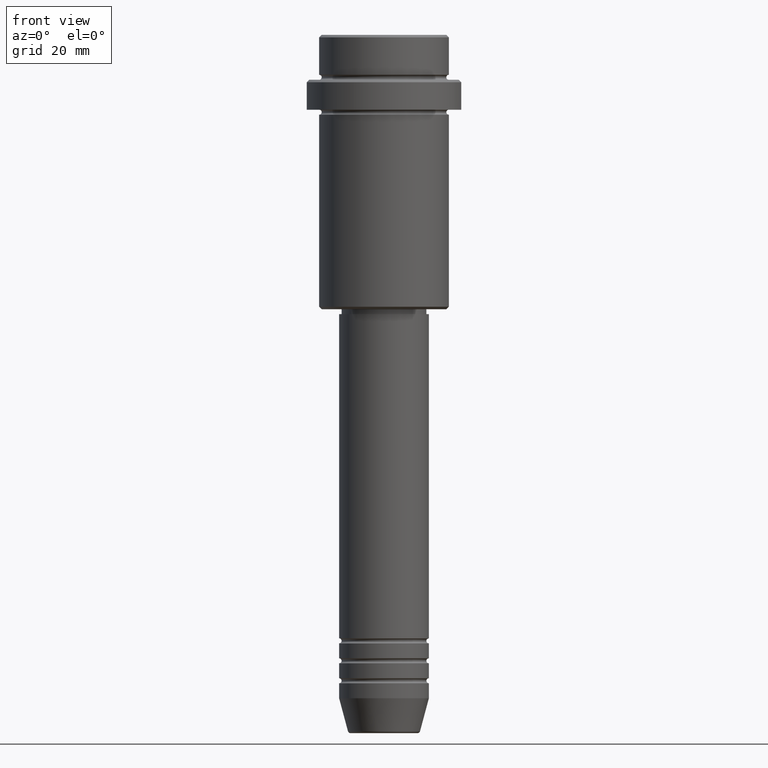
[diagram: clean part render]
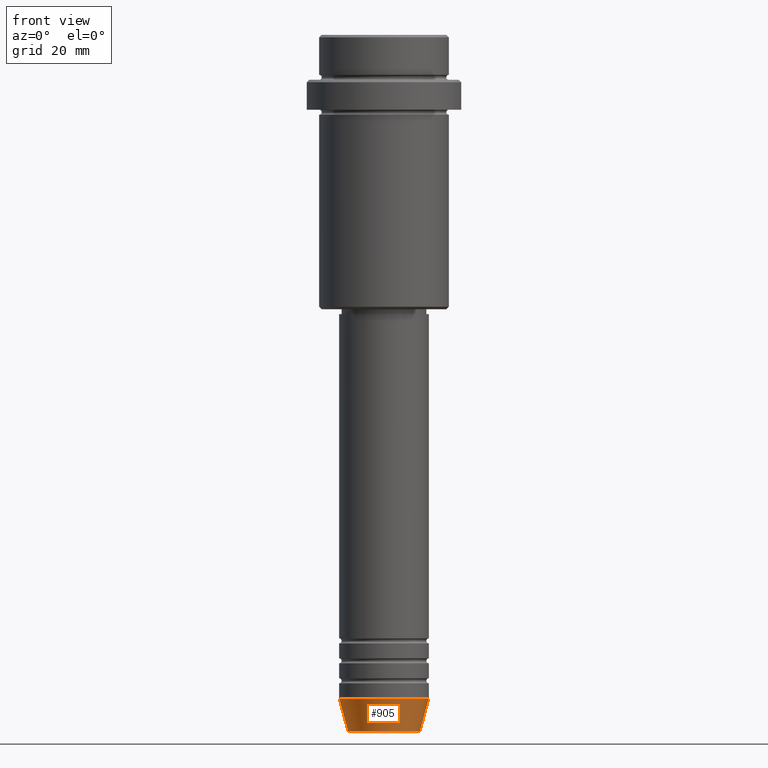
[diagram: same view with one face highlighted and labeled with its STEP entity id]
A machine part, front view. The second image highlights one B-rep face of the part: STEP entity #905.
In plain terms, the highlighted conical surface has half-angle 15 deg.
Its self-contained STEP definition (entity closure, byte-faithful):
#102 = DIRECTION ( 'NONE',  ( 1.000000000000000000, 0.000000000000000000, 0.000000000000000000 ) ) ;
#142 = CARTESIAN_POINT ( 'NONE',  ( 9.000000000000000000, 0.000000000000000000, -133.0000000000000000 ) ) ;
#171 = ORIENTED_EDGE ( 'NONE', *, *, #1279, .F. ) ;
#188 = CARTESIAN_POINT ( 'NONE',  ( 0.000000000000000000, 0.000000000000000000, -133.0000000000000000 ) ) ;
#205 = DIRECTION ( 'NONE',  ( -0.000000000000000000, -0.000000000000000000, 1.000000000000000000 ) ) ;
#247 = CARTESIAN_POINT ( 'NONE',  ( -7.223655072137189492, 9.934123627281765110E-16, -139.6294095225512990 ) ) ;
#271 = ORIENTED_EDGE ( 'NONE', *, *, #520, .T. ) ;
#305 = CARTESIAN_POINT ( 'NONE',  ( 9.000000000000000000, 0.000000000000000000, -133.0000000000000000 ) ) ;
#324 = DIRECTION ( 'NONE',  ( 1.000000000000000000, 0.000000000000000000, 0.000000000000000000 ) ) ;
#402 = CIRCLE ( 'NONE', #1183, 9.000000000000000000 ) ;
#421 = DIRECTION ( 'NONE',  ( -0.000000000000000000, -0.000000000000000000, 1.000000000000000000 ) ) ;
#423 = DIRECTION ( 'NONE',  ( -0.000000000000000000, -0.000000000000000000, 1.000000000000000000 ) ) ;
#459 = VERTEX_POINT ( 'NONE', #305 ) ;
#477 = AXIS2_PLACEMENT_3D ( 'NONE', #1402, #423, #324 ) ;
#520 = EDGE_CURVE ( 'NONE', #602, #790, #1102, .T. ) ;
#532 = CARTESIAN_POINT ( 'NONE',  ( 0.000000000000000000, 0.000000000000000000, -133.0000000000000000 ) ) ;
#579 = DIRECTION ( 'NONE',  ( 0.2588190451025213501, 0.000000000000000000, 0.9659258262890680902 ) ) ;
#602 = VERTEX_POINT ( 'NONE', #247 ) ;
#627 = DIRECTION ( 'NONE',  ( 1.000000000000000000, 0.000000000000000000, 0.000000000000000000 ) ) ;
#700 = CONICAL_SURFACE ( 'NONE', #1408, 9.000000000000000000, 0.2617993877991500740 ) ;
#708 = DIRECTION ( 'NONE',  ( -0.2588190451025213501, 3.169619151431772337E-17, 0.9659258262890680902 ) ) ;
#716 = VERTEX_POINT ( 'NONE', #929 ) ;
#790 = VERTEX_POINT ( 'NONE', #1041 ) ;
#796 = VECTOR ( 'NONE', #708, 1000.000000000000000 ) ;
#827 = LINE ( 'NONE', #142, #1201 ) ;
#846 = ORIENTED_EDGE ( 'NONE', *, *, #1161, .T. ) ;
#905 = ADVANCED_FACE ( 'NONE', ( #1303 ), #700, .T. ) ;
#929 = CARTESIAN_POINT ( 'NONE',  ( -9.000000000000000000, 1.102182119232617714E-15, -133.0000000000000000 ) ) ;
#1041 = CARTESIAN_POINT ( 'NONE',  ( 7.223655072137188604, 0.000000000000000000, -139.6294095225512990 ) ) ;
#1068 = EDGE_LOOP ( 'NONE', ( #1319, #271, #846, #171 ) ) ;
#1102 = CIRCLE ( 'NONE', #477, 7.223655072137188604 ) ;
#1124 = EDGE_CURVE ( 'NONE', #602, #716, #1229, .T. ) ;
#1152 = CARTESIAN_POINT ( 'NONE',  ( -9.000000000000000000, 1.102182119232617714E-15, -133.0000000000000000 ) ) ;
#1161 = EDGE_CURVE ( 'NONE', #790, #459, #827, .T. ) ;
#1183 = AXIS2_PLACEMENT_3D ( 'NONE', #188, #205, #627 ) ;
#1201 = VECTOR ( 'NONE', #579, 1000.000000000000000 ) ;
#1229 = LINE ( 'NONE', #1152, #796 ) ;
#1279 = EDGE_CURVE ( 'NONE', #716, #459, #402, .T. ) ;
#1303 = FACE_OUTER_BOUND ( 'NONE', #1068, .T. ) ;
#1319 = ORIENTED_EDGE ( 'NONE', *, *, #1124, .F. ) ;
#1402 = CARTESIAN_POINT ( 'NONE',  ( 0.000000000000000000, 0.000000000000000000, -139.6294095225512990 ) ) ;
#1408 = AXIS2_PLACEMENT_3D ( 'NONE', #532, #421, #102 ) ;